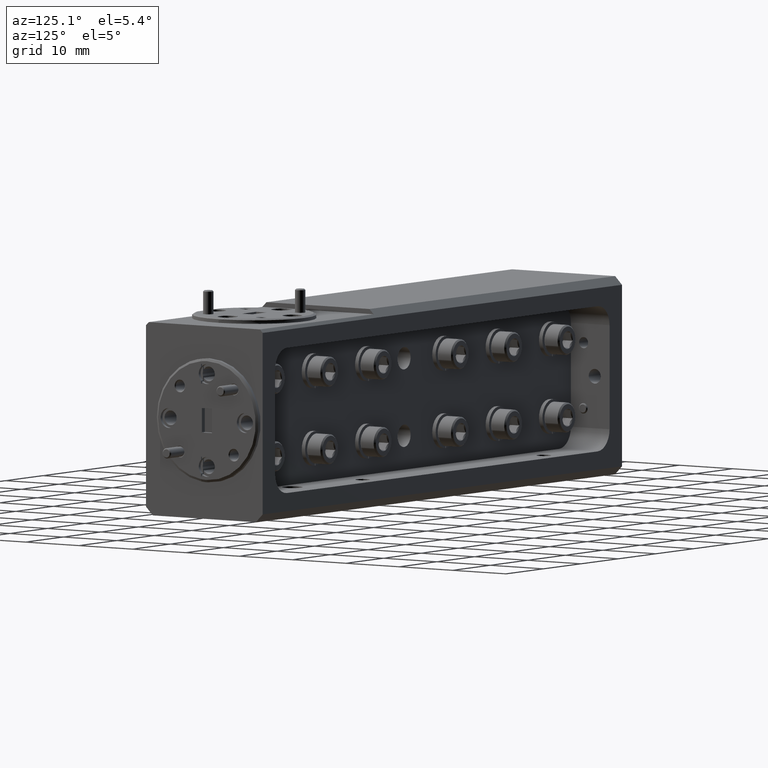
[diagram: clean part render]
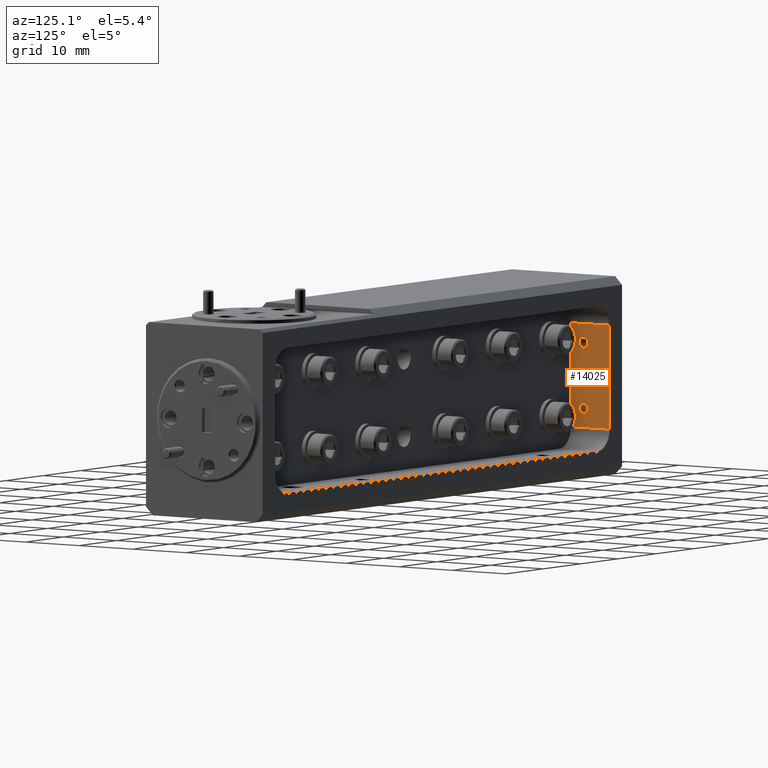
[diagram: same view with one face highlighted and labeled with its STEP entity id]
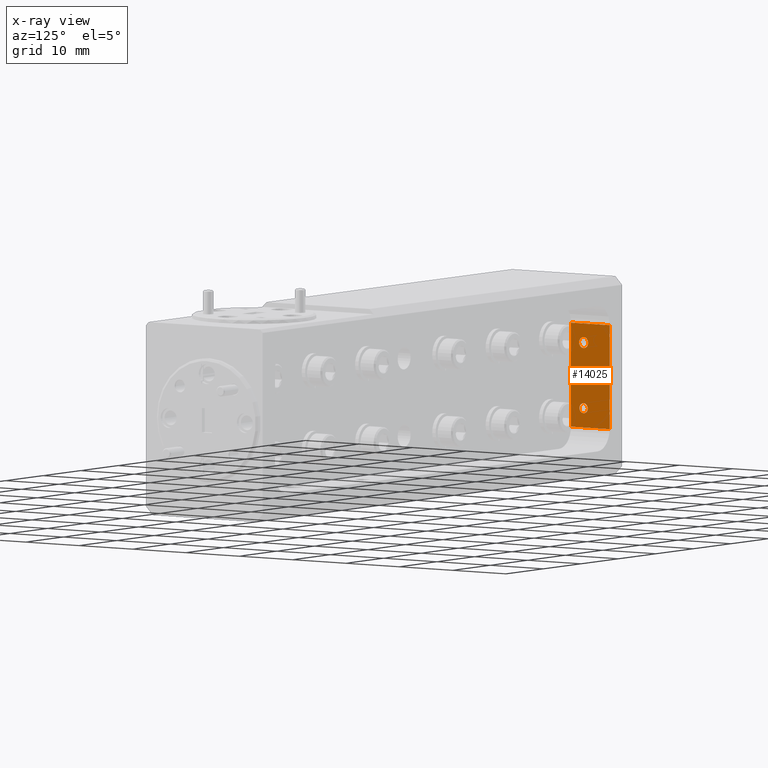
[diagram: x-ray of the same camera — body ghosted, the highlighted face saturated]
A machine part, auxiliary view. The second image highlights one B-rep face of the part: STEP entity #14025.
The next image is the same camera in x-ray: the body ghosted, the highlighted face saturated — about 0% of this face is hidden behind the body in this view.
In plain terms, the highlighted planar face has unit normal (1, 0, 0).
Its self-contained STEP definition (entity closure, byte-faithful):
#71 = LINE ( 'NONE', #6107, #5200 ) ;
#143 = CARTESIAN_POINT ( 'NONE',  ( -1.755000000000000560, 0.5750000000000000666, -0.4400000000000001688 ) ) ;
#681 = AXIS2_PLACEMENT_3D ( 'NONE', #10182, #16440, #11798 ) ;
#815 = EDGE_CURVE ( 'NONE', #3179, #13420, #16262, .T. ) ;
#872 = CARTESIAN_POINT ( 'NONE',  ( -1.755000000000000560, 0.6683737822087166824, 0.1653737822087167630 ) ) ;
#1460 = VERTEX_POINT ( 'NONE', #10834 ) ;
#1585 = VERTEX_POINT ( 'NONE', #11039 ) ;
#2310 = DIRECTION ( 'NONE',  ( 0.0000000000000000000, 0.0000000000000000000, -1.000000000000000000 ) ) ;
#2446 = CARTESIAN_POINT ( 'NONE',  ( -1.755000000000000560, 0.6683737822087166824, 0.1988737822087166818 ) ) ;
#2512 = VERTEX_POINT ( 'NONE', #12774 ) ;
#2743 = CIRCLE ( 'NONE', #19848, 0.03349999999999993261 ) ;
#2909 = DIRECTION ( 'NONE',  ( 1.000000000000000000, 0.0000000000000000000, 0.0000000000000000000 ) ) ;
#2990 = DIRECTION ( 'NONE',  ( -0.0000000000000000000, 1.000000000000000000, 0.0000000000000000000 ) ) ;
#3179 = VERTEX_POINT ( 'NONE', #11314 ) ;
#3237 = DIRECTION ( 'NONE',  ( 1.000000000000000000, 0.0000000000000000000, 0.0000000000000000000 ) ) ;
#3263 = FACE_BOUND ( 'NONE', #14827, .T. ) ;
#3265 = AXIS2_PLACEMENT_3D ( 'NONE', #2446, #4153, #4051 ) ;
#3280 = DIRECTION ( 'NONE',  ( -0.0000000000000000000, -0.0000000000000000000, -1.000000000000000000 ) ) ;
#3619 = CARTESIAN_POINT ( 'NONE',  ( -1.755000000000000560, 0.6683737822087166824, -0.1681237822087164047 ) ) ;
#4051 = DIRECTION ( 'NONE',  ( 0.0000000000000000000, 0.0000000000000000000, -1.000000000000000000 ) ) ;
#4153 = DIRECTION ( 'NONE',  ( 1.000000000000000000, 0.0000000000000000000, 0.0000000000000000000 ) ) ;
#4621 = DIRECTION ( 'NONE',  ( 0.0000000000000000000, 0.0000000000000000000, -1.000000000000000000 ) ) ;
#4848 = CIRCLE ( 'NONE', #18720, 0.04449999999999969258 ) ;
#4992 = DIRECTION ( 'NONE',  ( -0.0000000000000000000, -1.000000000000000000, 0.0000000000000000000 ) ) ;
#5200 = VECTOR ( 'NONE', #2990, 39.37007874015748143 ) ;
#5341 = EDGE_CURVE ( 'NONE', #12579, #7225, #12375, .T. ) ;
#5430 = DIRECTION ( 'NONE',  ( 1.000000000000000000, 0.0000000000000000000, 0.0000000000000000000 ) ) ;
#6054 = EDGE_CURVE ( 'NONE', #12913, #2512, #18092, .T. ) ;
#6107 = CARTESIAN_POINT ( 'NONE',  ( -1.755000000000000560, 0.8600000000000000977, -0.3150000000000001688 ) ) ;
#6303 = ORIENTED_EDGE ( 'NONE', *, *, #12545, .F. ) ;
#6713 = EDGE_LOOP ( 'NONE', ( #11718, #18054, #11620, #17638 ) ) ;
#7081 = CARTESIAN_POINT ( 'NONE',  ( -1.755000000000000560, 0.8600000000000000977, -0.3150000000000001688 ) ) ;
#7225 = VERTEX_POINT ( 'NONE', #7081 ) ;
#7713 = FACE_OUTER_BOUND ( 'NONE', #6713, .T. ) ;
#7922 = CIRCLE ( 'NONE', #17259, 0.03074999999999993711 ) ;
#7977 = EDGE_CURVE ( 'NONE', #12579, #3179, #8330, .T. ) ;
#8208 = AXIS2_PLACEMENT_3D ( 'NONE', #143, #13780, #18611 ) ;
#8330 = LINE ( 'NONE', #16097, #13294 ) ;
#8344 = CIRCLE ( 'NONE', #17061, 0.04449999999999969258 ) ;
#8586 = DIRECTION ( 'NONE',  ( -0.0000000000000000000, -0.0000000000000000000, -1.000000000000000000 ) ) ;
#9497 = DIRECTION ( 'NONE',  ( 0.0000000000000000000, 0.0000000000000000000, -1.000000000000000000 ) ) ;
#9856 = EDGE_CURVE ( 'NONE', #2512, #12913, #7922, .T. ) ;
#10182 = CARTESIAN_POINT ( 'NONE',  ( -1.755000000000000560, 0.6683737822087166824, -0.1988737822087163487 ) ) ;
#10761 = VERTEX_POINT ( 'NONE', #14771 ) ;
#10834 = CARTESIAN_POINT ( 'NONE',  ( -1.755000000000000560, 0.6683737822087166824, 0.2323737822087166283 ) ) ;
#11039 = CARTESIAN_POINT ( 'NONE',  ( -1.755000000000000560, 0.7507500000000001394, -0.04449999999999956074 ) ) ;
#11314 = CARTESIAN_POINT ( 'NONE',  ( -1.755000000000000560, 0.5750000000000000666, 0.3150000000000001132 ) ) ;
#11469 = CARTESIAN_POINT ( 'NONE',  ( -1.755000000000000560, 0.5750000000000000666, -0.3150000000000001688 ) ) ;
#11620 = ORIENTED_EDGE ( 'NONE', *, *, #5341, .F. ) ;
#11718 = ORIENTED_EDGE ( 'NONE', *, *, #815, .T. ) ;
#11798 = DIRECTION ( 'NONE',  ( 0.0000000000000000000, 0.0000000000000000000, -1.000000000000000000 ) ) ;
#12375 = LINE ( 'NONE', #13796, #18398 ) ;
#12460 = PLANE ( 'NONE',  #8208 ) ;
#12545 = EDGE_CURVE ( 'NONE', #1460, #14638, #13933, .T. ) ;
#12579 = VERTEX_POINT ( 'NONE', #18099 ) ;
#12768 = EDGE_CURVE ( 'NONE', #13420, #7225, #71, .T. ) ;
#12774 = CARTESIAN_POINT ( 'NONE',  ( -1.755000000000000560, 0.6683737822087166824, -0.2296237822087162928 ) ) ;
#12913 = VERTEX_POINT ( 'NONE', #3619 ) ;
#13119 = EDGE_CURVE ( 'NONE', #1585, #10761, #4848, .T. ) ;
#13227 = EDGE_CURVE ( 'NONE', #14638, #1460, #2743, .T. ) ;
#13294 = VECTOR ( 'NONE', #4992, 39.37007874015748143 ) ;
#13420 = VERTEX_POINT ( 'NONE', #11469 ) ;
#13472 = VECTOR ( 'NONE', #8586, 39.37007874015748143 ) ;
#13556 = ORIENTED_EDGE ( 'NONE', *, *, #17466, .F. ) ;
#13780 = DIRECTION ( 'NONE',  ( 1.000000000000000000, 0.0000000000000000000, 0.0000000000000000000 ) ) ;
#13796 = CARTESIAN_POINT ( 'NONE',  ( -1.755000000000000560, 0.8600000000000000977, -0.4400000000000001688 ) ) ;
#13933 = CIRCLE ( 'NONE', #3265, 0.03349999999999993261 ) ;
#13982 = FACE_BOUND ( 'NONE', #17011, .T. ) ;
#14025 = ADVANCED_FACE ( 'NONE', ( #13982, #3263, #18713, #7713 ), #12460, .T. ) ;
#14156 = CARTESIAN_POINT ( 'NONE',  ( -1.755000000000000560, 0.6683737822087166824, -0.1988737822087163487 ) ) ;
#14638 = VERTEX_POINT ( 'NONE', #872 ) ;
#14753 = CARTESIAN_POINT ( 'NONE',  ( -1.755000000000000560, 0.5750000000000000666, -0.4400000000000001688 ) ) ;
#14771 = CARTESIAN_POINT ( 'NONE',  ( -1.755000000000000560, 0.7507500000000001394, 0.04449999999999981748 ) ) ;
#14827 = EDGE_LOOP ( 'NONE', ( #18281, #16653 ) ) ;
#15237 = DIRECTION ( 'NONE',  ( 0.0000000000000000000, 0.0000000000000000000, -1.000000000000000000 ) ) ;
#15434 = CARTESIAN_POINT ( 'NONE',  ( -1.755000000000000560, 0.6683737822087166824, 0.1988737822087166818 ) ) ;
#16082 = ORIENTED_EDGE ( 'NONE', *, *, #13119, .F. ) ;
#16097 = CARTESIAN_POINT ( 'NONE',  ( -1.755000000000000560, 0.5750000000000000666, 0.3150000000000001688 ) ) ;
#16262 = LINE ( 'NONE', #14753, #13472 ) ;
#16440 = DIRECTION ( 'NONE',  ( 1.000000000000000000, 0.0000000000000000000, 0.0000000000000000000 ) ) ;
#16441 = CARTESIAN_POINT ( 'NONE',  ( -1.755000000000000560, 0.7507500000000001394, 1.280553747030123322E-16 ) ) ;
#16653 = ORIENTED_EDGE ( 'NONE', *, *, #9856, .F. ) ;
#17011 = EDGE_LOOP ( 'NONE', ( #6303, #17821 ) ) ;
#17061 = AXIS2_PLACEMENT_3D ( 'NONE', #17756, #5430, #2310 ) ;
#17259 = AXIS2_PLACEMENT_3D ( 'NONE', #14156, #3237, #9497 ) ;
#17466 = EDGE_CURVE ( 'NONE', #10761, #1585, #8344, .T. ) ;
#17638 = ORIENTED_EDGE ( 'NONE', *, *, #7977, .T. ) ;
#17756 = CARTESIAN_POINT ( 'NONE',  ( -1.755000000000000560, 0.7507500000000001394, 1.280553747030123322E-16 ) ) ;
#17821 = ORIENTED_EDGE ( 'NONE', *, *, #13227, .F. ) ;
#18054 = ORIENTED_EDGE ( 'NONE', *, *, #12768, .T. ) ;
#18092 = CIRCLE ( 'NONE', #681, 0.03074999999999993711 ) ;
#18099 = CARTESIAN_POINT ( 'NONE',  ( -1.755000000000000560, 0.8600000000000000977, 0.3150000000000001132 ) ) ;
#18281 = ORIENTED_EDGE ( 'NONE', *, *, #6054, .F. ) ;
#18398 = VECTOR ( 'NONE', #3280, 39.37007874015748143 ) ;
#18555 = DIRECTION ( 'NONE',  ( 1.000000000000000000, 0.0000000000000000000, 0.0000000000000000000 ) ) ;
#18611 = DIRECTION ( 'NONE',  ( 0.0000000000000000000, 0.0000000000000000000, -1.000000000000000000 ) ) ;
#18713 = FACE_BOUND ( 'NONE', #19971, .T. ) ;
#18720 = AXIS2_PLACEMENT_3D ( 'NONE', #16441, #2909, #15237 ) ;
#19848 = AXIS2_PLACEMENT_3D ( 'NONE', #15434, #18555, #4621 ) ;
#19971 = EDGE_LOOP ( 'NONE', ( #13556, #16082 ) ) ;